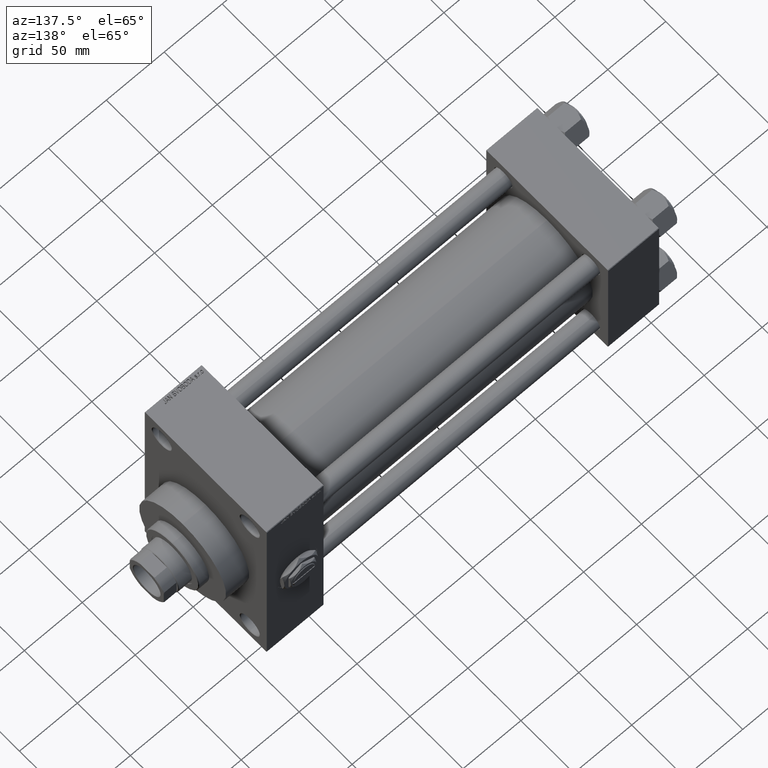
[diagram: clean part render]
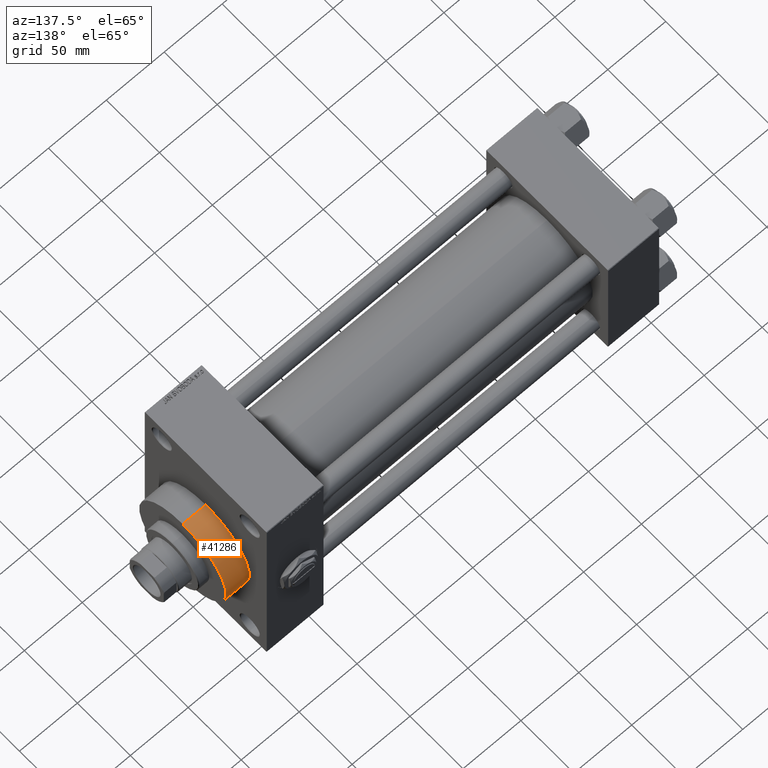
[diagram: same view with one face highlighted and labeled with its STEP entity id]
A machine part, auxiliary view. The second image highlights one B-rep face of the part: STEP entity #41286.
In plain terms, the highlighted cylindrical surface (partial cylindrical patch) has radius 41 mm, axis along (-1, -0, -0).
Its self-contained STEP definition (entity closure, byte-faithful):
#751 = AXIS2_PLACEMENT_3D ( 'NONE', #36683, #44140, #5857 ) ;
#1666 = CIRCLE ( 'NONE', #47708, 41.00000000000000000 ) ;
#2098 = EDGE_CURVE ( 'NONE', #37048, #25426, #14063, .T. ) ;
#5857 = DIRECTION ( 'NONE',  ( 0.000000000000000000, 0.000000000000000000, -1.000000000000000000 ) ) ;
#6857 = DIRECTION ( 'NONE',  ( -1.000000000000000000, -0.000000000000000000, -0.000000000000000000 ) ) ;
#7389 = CARTESIAN_POINT ( 'NONE',  ( 359.0000000000000000, 5.021051876504148963E-15, -41.00000000000000000 ) ) ;
#8670 = CIRCLE ( 'NONE', #751, 41.00000000000000000 ) ;
#10402 = VERTEX_POINT ( 'NONE', #7389 ) ;
#10970 = CARTESIAN_POINT ( 'NONE',  ( 359.0000000000000000, 0.000000000000000000, 0.000000000000000000 ) ) ;
#11935 = EDGE_CURVE ( 'NONE', #34794, #25426, #1666, .T. ) ;
#12744 = ORIENTED_EDGE ( 'NONE', *, *, #11935, .T. ) ;
#13102 = EDGE_CURVE ( 'NONE', #10402, #34794, #23763, .T. ) ;
#14063 = LINE ( 'NONE', #40948, #46206 ) ;
#16945 = ORIENTED_EDGE ( 'NONE', *, *, #13102, .T. ) ;
#17006 = CARTESIAN_POINT ( 'NONE',  ( 338.9999999999999432, 0.000000000000000000, 41.00000000000000000 ) ) ;
#17982 = CARTESIAN_POINT ( 'NONE',  ( 359.0000000000000000, 0.000000000000000000, 41.00000000000000000 ) ) ;
#20367 = ORIENTED_EDGE ( 'NONE', *, *, #2098, .F. ) ;
#20558 = CARTESIAN_POINT ( 'NONE',  ( 338.9999999999999432, 0.000000000000000000, 0.000000000000000000 ) ) ;
#21672 = ORIENTED_EDGE ( 'NONE', *, *, #42088, .F. ) ;
#23266 = CARTESIAN_POINT ( 'NONE',  ( 359.0000000000000000, 5.021051876504148963E-15, -41.00000000000000000 ) ) ;
#23763 = LINE ( 'NONE', #23266, #43669 ) ;
#25033 = DIRECTION ( 'NONE',  ( 1.000000000000000000, 0.000000000000000000, 0.000000000000000000 ) ) ;
#25426 = VERTEX_POINT ( 'NONE', #17006 ) ;
#32488 = DIRECTION ( 'NONE',  ( 0.000000000000000000, 0.000000000000000000, -1.000000000000000000 ) ) ;
#34794 = VERTEX_POINT ( 'NONE', #48169 ) ;
#34833 = AXIS2_PLACEMENT_3D ( 'NONE', #10970, #45555, #37346 ) ;
#36683 = CARTESIAN_POINT ( 'NONE',  ( 359.0000000000000000, 0.000000000000000000, 0.000000000000000000 ) ) ;
#37048 = VERTEX_POINT ( 'NONE', #17982 ) ;
#37346 = DIRECTION ( 'NONE',  ( 0.000000000000000000, 0.000000000000000000, 1.000000000000000000 ) ) ;
#38444 = DIRECTION ( 'NONE',  ( -1.000000000000000000, -0.000000000000000000, -0.000000000000000000 ) ) ;
#40948 = CARTESIAN_POINT ( 'NONE',  ( 359.0000000000000000, 0.000000000000000000, 41.00000000000000000 ) ) ;
#41286 = ADVANCED_FACE ( 'NONE', ( #45297 ), #41583, .T. ) ;
#41583 = CYLINDRICAL_SURFACE ( 'NONE', #34833, 41.00000000000000000 ) ;
#42088 = EDGE_CURVE ( 'NONE', #10402, #37048, #8670, .T. ) ;
#43669 = VECTOR ( 'NONE', #38444, 1000.000000000000000 ) ;
#44140 = DIRECTION ( 'NONE',  ( 1.000000000000000000, 0.000000000000000000, 0.000000000000000000 ) ) ;
#45297 = FACE_OUTER_BOUND ( 'NONE', #46021, .T. ) ;
#45555 = DIRECTION ( 'NONE',  ( -1.000000000000000000, -0.000000000000000000, -0.000000000000000000 ) ) ;
#46021 = EDGE_LOOP ( 'NONE', ( #21672, #16945, #12744, #20367 ) ) ;
#46206 = VECTOR ( 'NONE', #6857, 1000.000000000000000 ) ;
#47708 = AXIS2_PLACEMENT_3D ( 'NONE', #20558, #25033, #32488 ) ;
#48169 = CARTESIAN_POINT ( 'NONE',  ( 338.9999999999999432, 5.021051876504148963E-15, -41.00000000000000000 ) ) ;